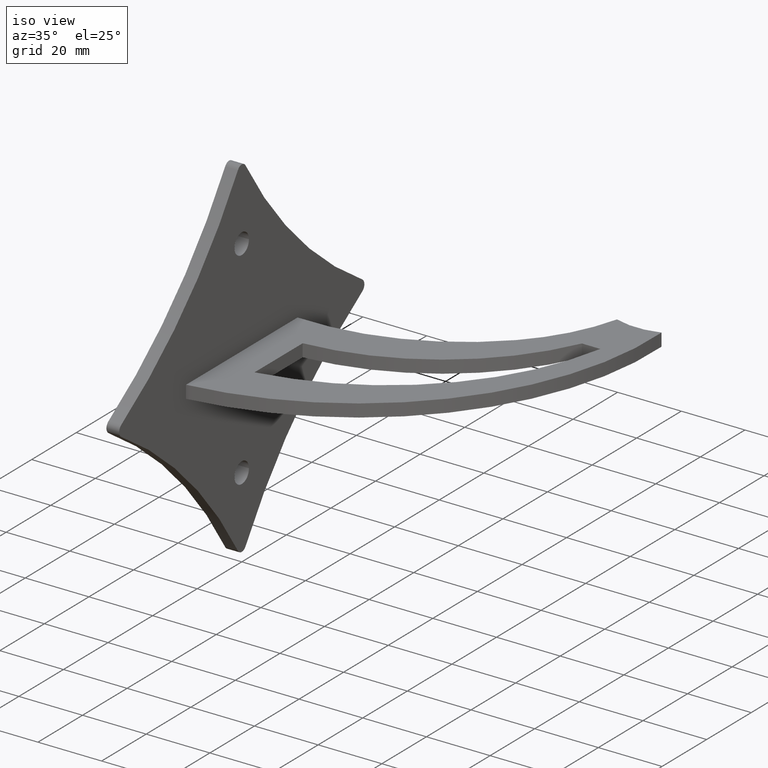
[diagram: clean part render]
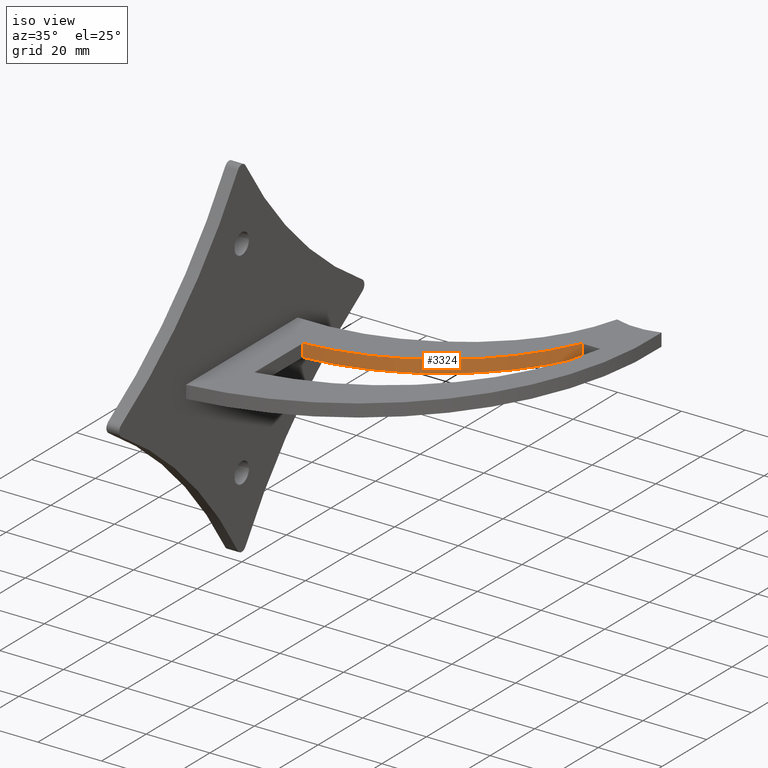
[diagram: same view with one face highlighted and labeled with its STEP entity id]
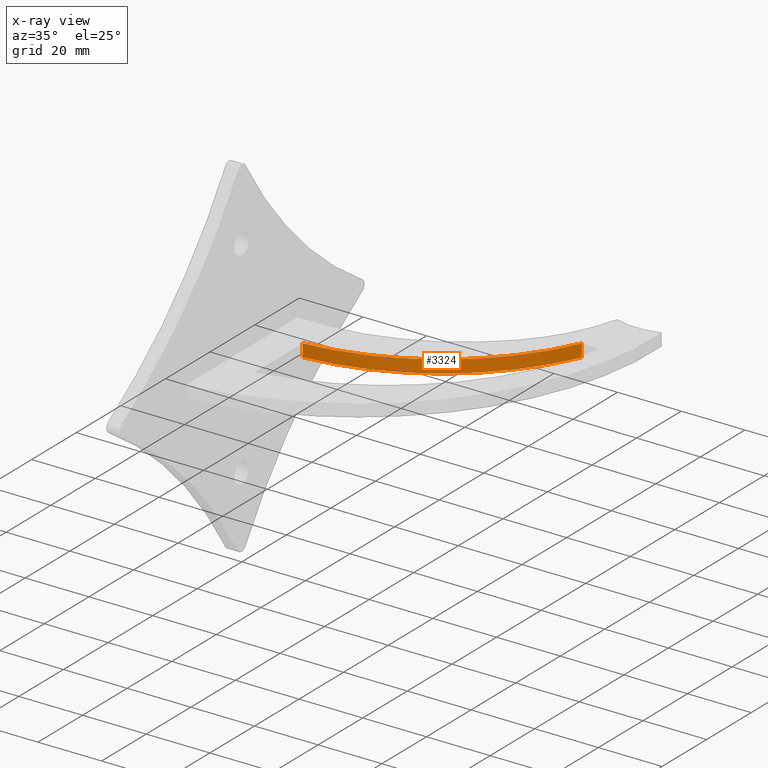
[diagram: x-ray of the same camera — body ghosted, the highlighted face saturated]
A machine part, iso view. The second image highlights one B-rep face of the part: STEP entity #3324.
The next image is the same camera in x-ray: the body ghosted, the highlighted face saturated — about 0% of this face is hidden behind the body in this view.
In plain terms, the highlighted cylindrical surface (partial cylindrical patch) has radius 70 mm, axis along (-0, -0, -1).
Its self-contained STEP definition (entity closure, byte-faithful):
#115 = ORIENTED_EDGE ( 'NONE', *, *, #7556, .F. ) ;
#281 = CARTESIAN_POINT ( 'NONE',  ( 69.01433309437241803, 54.00000000000000711, 2.000000000000000000 ) ) ;
#339 = CARTESIAN_POINT ( 'NONE',  ( 5.180452133363093736, 82.72691493104838401, -2.000000000000000000 ) ) ;
#850 = FACE_OUTER_BOUND ( 'NONE', #1196, .T. ) ;
#997 = DIRECTION ( 'NONE',  ( -0.000000000000000000, -0.000000000000000000, -1.000000000000000000 ) ) ;
#1006 = CYLINDRICAL_SURFACE ( 'NONE', #8376, 70.00000000000000000 ) ;
#1196 = EDGE_LOOP ( 'NONE', ( #9882, #115, #8422, #7615 ) ) ;
#1441 = CARTESIAN_POINT ( 'NONE',  ( 69.01433309437241803, 54.00000000000000711, 2.000000000000000000 ) ) ;
#2198 = CARTESIAN_POINT ( 'NONE',  ( 10.09999999999999787, 12.90000000000000391, 2.000000000000000000 ) ) ;
#2727 = VERTEX_POINT ( 'NONE', #2198 ) ;
#2848 = CARTESIAN_POINT ( 'NONE',  ( 10.09999999999999787, 12.90000000000000391, 2.000000000000000000 ) ) ;
#3324 = ADVANCED_FACE ( 'NONE', ( #850 ), #1006, .T. ) ;
#3745 = DIRECTION ( 'NONE',  ( 1.000000000000000000, 0.000000000000000000, 0.000000000000000000 ) ) ;
#4217 = VECTOR ( 'NONE', #997, 1000.000000000000000 ) ;
#5218 = VERTEX_POINT ( 'NONE', #1441 ) ;
#5489 = VERTEX_POINT ( 'NONE', #11809 ) ;
#5630 = AXIS2_PLACEMENT_3D ( 'NONE', #339, #7585, #11349 ) ;
#6320 = EDGE_CURVE ( 'NONE', #2727, #5218, #7506, .T. ) ;
#6632 = LINE ( 'NONE', #2848, #4217 ) ;
#6812 = VECTOR ( 'NONE', #7527, 1000.000000000000000 ) ;
#7260 = CARTESIAN_POINT ( 'NONE',  ( 5.180452133363093736, 82.72691493104838401, 2.000000000000000000 ) ) ;
#7506 = CIRCLE ( 'NONE', #7532, 69.99999999999998579 ) ;
#7527 = DIRECTION ( 'NONE',  ( -0.000000000000000000, -0.000000000000000000, -1.000000000000000000 ) ) ;
#7532 = AXIS2_PLACEMENT_3D ( 'NONE', #7260, #8252, #3745 ) ;
#7556 = EDGE_CURVE ( 'NONE', #5218, #8599, #10261, .T. ) ;
#7585 = DIRECTION ( 'NONE',  ( -0.000000000000000000, 0.000000000000000000, 1.000000000000000000 ) ) ;
#7615 = ORIENTED_EDGE ( 'NONE', *, *, #10012, .T. ) ;
#8193 = CIRCLE ( 'NONE', #5630, 70.00000000000000000 ) ;
#8252 = DIRECTION ( 'NONE',  ( -0.000000000000000000, 0.000000000000000000, 1.000000000000000000 ) ) ;
#8376 = AXIS2_PLACEMENT_3D ( 'NONE', #8796, #10713, #11528 ) ;
#8422 = ORIENTED_EDGE ( 'NONE', *, *, #6320, .F. ) ;
#8599 = VERTEX_POINT ( 'NONE', #10652 ) ;
#8796 = CARTESIAN_POINT ( 'NONE',  ( 5.180452133363093736, 82.72691493104838401, 2.000000000000000000 ) ) ;
#9882 = ORIENTED_EDGE ( 'NONE', *, *, #11450, .T. ) ;
#10012 = EDGE_CURVE ( 'NONE', #2727, #5489, #6632, .T. ) ;
#10261 = LINE ( 'NONE', #281, #6812 ) ;
#10652 = CARTESIAN_POINT ( 'NONE',  ( 69.01433309437241803, 54.00000000000000711, -2.000000000000000000 ) ) ;
#10713 = DIRECTION ( 'NONE',  ( -0.000000000000000000, -0.000000000000000000, -1.000000000000000000 ) ) ;
#11349 = DIRECTION ( 'NONE',  ( 1.000000000000000000, 0.000000000000000000, 0.000000000000000000 ) ) ;
#11450 = EDGE_CURVE ( 'NONE', #5489, #8599, #8193, .T. ) ;
#11528 = DIRECTION ( 'NONE',  ( -1.000000000000000000, 0.000000000000000000, 0.000000000000000000 ) ) ;
#11809 = CARTESIAN_POINT ( 'NONE',  ( 10.09999999999999787, 12.90000000000000391, -2.000000000000000000 ) ) ;